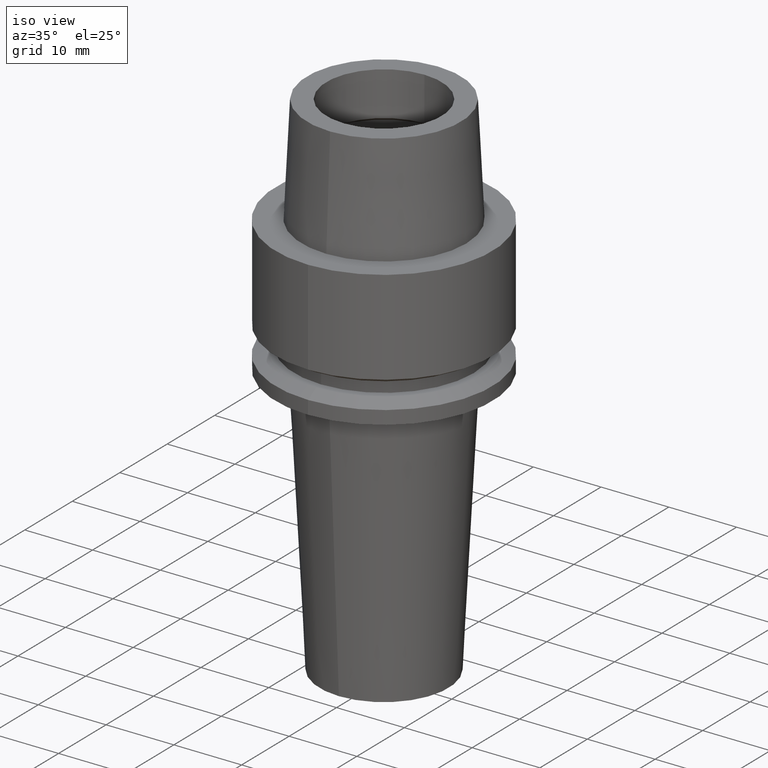
[diagram: clean part render]
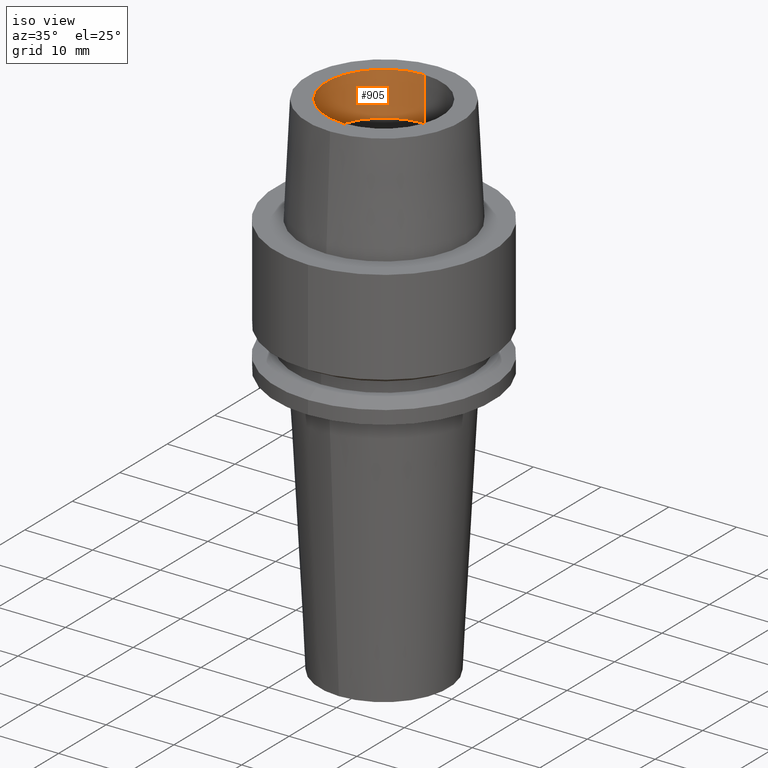
[diagram: same view with one face highlighted and labeled with its STEP entity id]
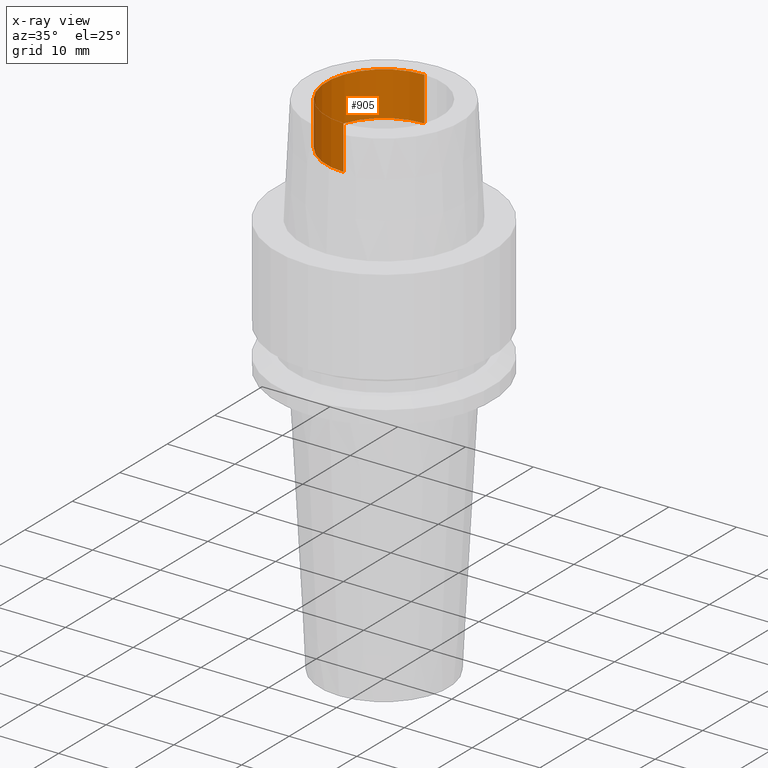
[diagram: x-ray of the same camera — body ghosted, the highlighted face saturated]
A machine part, iso view. The second image highlights one B-rep face of the part: STEP entity #905.
The next image is the same camera in x-ray: the body ghosted, the highlighted face saturated — about 0% of this face is hidden behind the body in this view.
In plain terms, the highlighted cylindrical surface (partial cylindrical patch) has radius 8.5 mm, axis along (0, 0, -1).
Its self-contained STEP definition (entity closure, byte-faithful):
#56=CARTESIAN_POINT('',(0.E0,1.467126865379E-14,1.6E1));
#57=DIRECTION('',(0.E0,0.E0,1.E0));
#58=DIRECTION('',(0.E0,1.E0,0.E0));
#59=AXIS2_PLACEMENT_3D('',#56,#57,#58);
#64=DIRECTION('',(0.E0,0.E0,1.E0));
#65=VECTOR('',#64,6.502649730810E0);
#66=CARTESIAN_POINT('',(0.E0,8.5E0,9.497350269190E0));
#67=LINE('',#66,#65);
#71=DIRECTION('',(0.E0,0.E0,1.E0));
#72=VECTOR('',#71,6.502649730810E0);
#73=CARTESIAN_POINT('',(0.E0,-8.5E0,9.497350269190E0));
#74=LINE('',#73,#72);
#93=CARTESIAN_POINT('',(0.E0,1.334769106330E-14,9.497350269190E0));
#94=DIRECTION('',(0.E0,0.E0,-1.E0));
#95=DIRECTION('',(0.E0,-1.E0,0.E0));
#96=AXIS2_PLACEMENT_3D('',#93,#94,#95);
#728=CARTESIAN_POINT('',(0.E0,-8.5E0,1.6E1));
#729=CARTESIAN_POINT('',(0.E0,8.5E0,1.6E1));
#730=VERTEX_POINT('',#728);
#731=VERTEX_POINT('',#729);
#732=CARTESIAN_POINT('',(0.E0,8.5E0,9.497350269190E0));
#733=VERTEX_POINT('',#732);
#734=CARTESIAN_POINT('',(0.E0,-8.5E0,9.497350269190E0));
#735=VERTEX_POINT('',#734);
#893=CARTESIAN_POINT('',(0.E0,1.467126865379E-14,1.98E1));
#894=DIRECTION('',(0.E0,0.E0,-1.E0));
#895=DIRECTION('',(0.E0,-1.E0,0.E0));
#896=AXIS2_PLACEMENT_3D('',#893,#894,#895);
#897=CYLINDRICAL_SURFACE('',#896,8.5E0);
#898=ORIENTED_EDGE('',*,*,#883,.F.);
#900=ORIENTED_EDGE('',*,*,#899,.F.);
#901=ORIENTED_EDGE('',*,*,#886,.T.);
#902=ORIENTED_EDGE('',*,*,#873,.F.);
#903=EDGE_LOOP('',(#898,#900,#901,#902));
#904=FACE_OUTER_BOUND('',#903,.F.);
#60=CIRCLE('',#59,8.5E0);
#97=CIRCLE('',#96,8.5E0);
#873=EDGE_CURVE('',#731,#730,#60,.T.);
#883=EDGE_CURVE('',#733,#731,#67,.T.);
#886=EDGE_CURVE('',#735,#730,#74,.T.);
#899=EDGE_CURVE('',#735,#733,#97,.T.);
#905=ADVANCED_FACE('',(#904),#897,.F.);